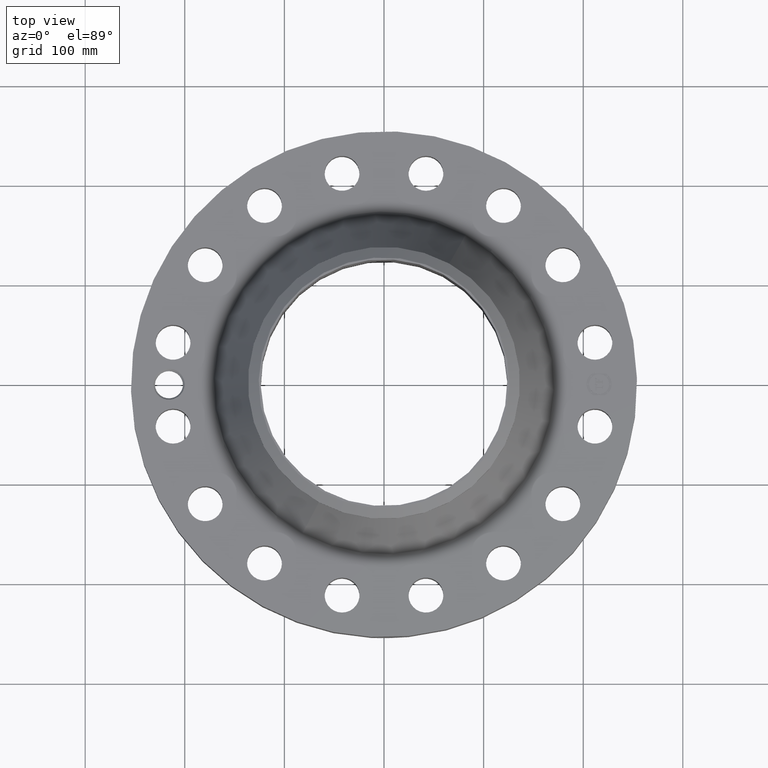
[diagram: clean part render]
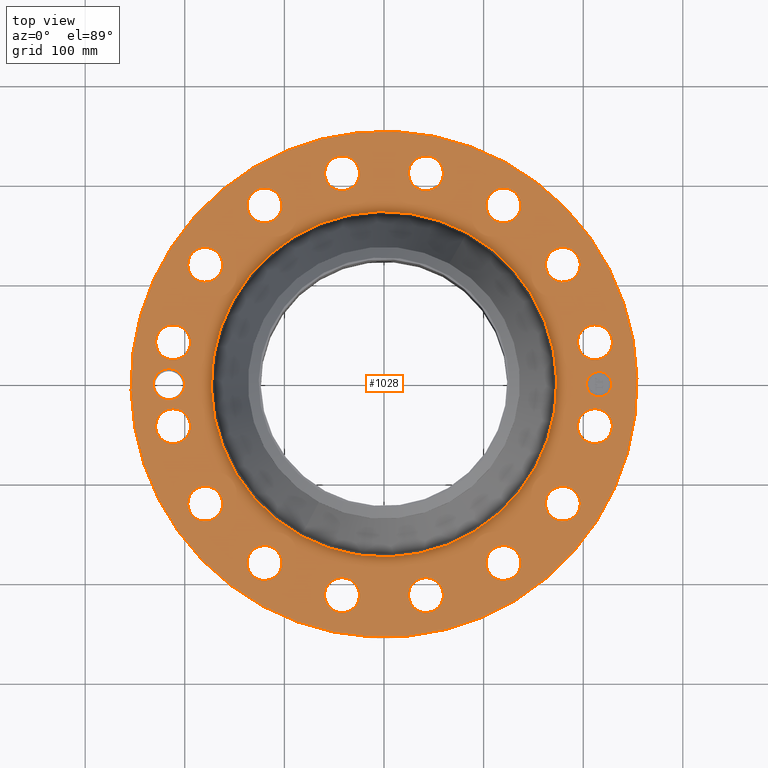
[diagram: same view with one face highlighted and labeled with its STEP entity id]
A machine part, top view. The second image highlights one B-rep face of the part: STEP entity #1028.
In plain terms, the highlighted planar face has unit normal (0, 0, -1).
Its self-contained STEP definition (entity closure, byte-faithful):
#58=AXIS2_PLACEMENT_3D('Circle Axis2P3D',#56,#57,$) ;
#547=AXIS2_PLACEMENT_3D('Circle Axis2P3D',#545,#546,$) ;
#647=AXIS2_PLACEMENT_3D('Plane Axis2P3D',#644,#645,#646) ;
#680=AXIS2_PLACEMENT_3D('Circle Axis2P3D',#678,#679,$) ;
#687=AXIS2_PLACEMENT_3D('Circle Axis2P3D',#685,#686,$) ;
#694=AXIS2_PLACEMENT_3D('Circle Axis2P3D',#692,#693,$) ;
#706=AXIS2_PLACEMENT_3D('Circle Axis2P3D',#704,#705,$) ;
#715=AXIS2_PLACEMENT_3D('Circle Axis2P3D',#713,#714,$) ;
#724=AXIS2_PLACEMENT_3D('Circle Axis2P3D',#722,#723,$) ;
#733=AXIS2_PLACEMENT_3D('Circle Axis2P3D',#731,#732,$) ;
#742=AXIS2_PLACEMENT_3D('Circle Axis2P3D',#740,#741,$) ;
#751=AXIS2_PLACEMENT_3D('Circle Axis2P3D',#749,#750,$) ;
#760=AXIS2_PLACEMENT_3D('Circle Axis2P3D',#758,#759,$) ;
#769=AXIS2_PLACEMENT_3D('Circle Axis2P3D',#767,#768,$) ;
#778=AXIS2_PLACEMENT_3D('Circle Axis2P3D',#776,#777,$) ;
#787=AXIS2_PLACEMENT_3D('Circle Axis2P3D',#785,#786,$) ;
#796=AXIS2_PLACEMENT_3D('Circle Axis2P3D',#794,#795,$) ;
#805=AXIS2_PLACEMENT_3D('Circle Axis2P3D',#803,#804,$) ;
#814=AXIS2_PLACEMENT_3D('Circle Axis2P3D',#812,#813,$) ;
#823=AXIS2_PLACEMENT_3D('Circle Axis2P3D',#821,#822,$) ;
#832=AXIS2_PLACEMENT_3D('Circle Axis2P3D',#830,#831,$) ;
#841=AXIS2_PLACEMENT_3D('Circle Axis2P3D',#839,#840,$) ;
#850=AXIS2_PLACEMENT_3D('Circle Axis2P3D',#848,#849,$) ;
#859=AXIS2_PLACEMENT_3D('Circle Axis2P3D',#857,#858,$) ;
#868=AXIS2_PLACEMENT_3D('Circle Axis2P3D',#866,#867,$) ;
#877=AXIS2_PLACEMENT_3D('Circle Axis2P3D',#875,#876,$) ;
#886=AXIS2_PLACEMENT_3D('Circle Axis2P3D',#884,#885,$) ;
#895=AXIS2_PLACEMENT_3D('Circle Axis2P3D',#893,#894,$) ;
#904=AXIS2_PLACEMENT_3D('Circle Axis2P3D',#902,#903,$) ;
#913=AXIS2_PLACEMENT_3D('Circle Axis2P3D',#911,#912,$) ;
#922=AXIS2_PLACEMENT_3D('Circle Axis2P3D',#920,#921,$) ;
#931=AXIS2_PLACEMENT_3D('Circle Axis2P3D',#929,#930,$) ;
#940=AXIS2_PLACEMENT_3D('Circle Axis2P3D',#938,#939,$) ;
#949=AXIS2_PLACEMENT_3D('Circle Axis2P3D',#947,#948,$) ;
#958=AXIS2_PLACEMENT_3D('Circle Axis2P3D',#956,#957,$) ;
#967=AXIS2_PLACEMENT_3D('Circle Axis2P3D',#965,#966,$) ;
#976=AXIS2_PLACEMENT_3D('Circle Axis2P3D',#974,#975,$) ;
#985=AXIS2_PLACEMENT_3D('Circle Axis2P3D',#983,#984,$) ;
#994=AXIS2_PLACEMENT_3D('Circle Axis2P3D',#992,#993,$) ;
#1003=AXIS2_PLACEMENT_3D('Circle Axis2P3D',#1001,#1002,$) ;
#1012=AXIS2_PLACEMENT_3D('Circle Axis2P3D',#1010,#1011,$) ;
#1021=AXIS2_PLACEMENT_3D('Circle Axis2P3D',#1019,#1020,$) ;
#53=CARTESIAN_POINT('Vertex',(-4.79425538606,-8.77582561894,2.75000000001)) ;
#56=CARTESIAN_POINT('Axis2P3D Location',(0.,0.,2.75000000001)) ;
#60=CARTESIAN_POINT('Vertex',(4.79425538606,8.77582561894,2.75000000001)) ;
#545=CARTESIAN_POINT('Axis2P3D Location',(0.,0.,2.75000000001)) ;
#644=CARTESIAN_POINT('Axis2P3D Location',(0.,10.,2.75000000001)) ;
#654=CARTESIAN_POINT('Control Point',(-7.87500000003,0.,2.75000000001)) ;
#655=CARTESIAN_POINT('Control Point',(-7.87705142064,0.0564511523804,2.75000000001)) ;
#656=CARTESIAN_POINT('Control Point',(-7.88548072354,0.112561587075,2.75000000001)) ;
#657=CARTESIAN_POINT('Control Point',(-7.90023971416,0.167363576607,2.75000000001)) ;
#658=CARTESIAN_POINT('Control Point',(-7.92105018802,0.219898873504,2.75000000001)) ;
#659=CARTESIAN_POINT('Control Point',(-7.94744108709,0.269322738981,2.75000000001)) ;
#660=CARTESIAN_POINT('Vertex',(-7.87500000003,0.,2.75000000001)) ;
#662=CARTESIAN_POINT('Vertex',(-7.94744108709,0.269322738981,2.75000000001)) ;
#666=CARTESIAN_POINT('Control Point',(-7.87500000003,0.,2.75000000001)) ;
#667=CARTESIAN_POINT('Control Point',(-7.87686305338,-0.0512676475944,2.75000000001)) ;
#668=CARTESIAN_POINT('Control Point',(-7.88398649443,-0.1022542766,2.75000000001)) ;
#669=CARTESIAN_POINT('Control Point',(-7.89632550631,-0.152217041043,2.75000000001)) ;
#670=CARTESIAN_POINT('Control Point',(-7.91547875014,-0.205418825482,2.75000000001)) ;
#671=CARTESIAN_POINT('Control Point',(-7.94033948359,-0.255718392461,2.75000000001)) ;
#672=CARTESIAN_POINT('Control Point',(-7.9427163827,-0.260400863105,2.75000000001)) ;
#673=CARTESIAN_POINT('Control Point',(-7.9451425557,-0.265056495755,2.75000000001)) ;
#674=CARTESIAN_POINT('Control Point',(-7.94761760847,-0.269684600023,2.75000000001)) ;
#675=CARTESIAN_POINT('Vertex',(-7.94761760847,-0.269684600023,2.75000000001)) ;
#678=CARTESIAN_POINT('Axis2P3D Location',(-8.50000000003,1.1189649382E-015,2.75000000001)) ;
#682=CARTESIAN_POINT('Vertex',(-7.96054999924,-0.294702878581,2.75000000001)) ;
#685=CARTESIAN_POINT('Axis2P3D Location',(-8.50000000003,1.1189649382E-015,2.75000000001)) ;
#689=CARTESIAN_POINT('Vertex',(-9.03945000083,0.294702878581,2.75000000001)) ;
#692=CARTESIAN_POINT('Axis2P3D Location',(-8.50000000003,1.1189649382E-015,2.75000000001)) ;
#704=CARTESIAN_POINT('Axis2P3D Location',(8.33667488346,-1.65826773714,2.75000000001)) ;
#708=CARTESIAN_POINT('Vertex',(7.73114291575,-1.32746411551,2.75000000001)) ;
#710=CARTESIAN_POINT('Vertex',(8.94220685117,-1.98907135878,2.75000000001)) ;
#713=CARTESIAN_POINT('Axis2P3D Location',(8.33667488346,-1.65826773714,2.75000000001)) ;
#722=CARTESIAN_POINT('Axis2P3D Location',(0.,0.,2.75000000001)) ;
#726=CARTESIAN_POINT('Vertex',(-3.27273076022,-5.99069347305,2.75000000001)) ;
#728=CARTESIAN_POINT('Vertex',(3.27273076022,5.99069347305,2.75000000001)) ;
#731=CARTESIAN_POINT('Axis2P3D Location',(0.,0.,2.75000000001)) ;
#740=CARTESIAN_POINT('Axis2P3D Location',(7.0674917046,-4.72234698069,2.75000000001)) ;
#744=CARTESIAN_POINT('Vertex',(7.50033723048,-5.25969672781,2.75000000001)) ;
#746=CARTESIAN_POINT('Vertex',(6.63464617872,-4.18499723356,2.75000000001)) ;
#749=CARTESIAN_POINT('Axis2P3D Location',(7.0674917046,-4.72234698069,2.75000000001)) ;
#758=CARTESIAN_POINT('Axis2P3D Location',(4.72234698069,-7.0674917046,2.75000000001)) ;
#762=CARTESIAN_POINT('Vertex',(4.91660925717,-7.72958094929,2.75000000001)) ;
#764=CARTESIAN_POINT('Vertex',(4.5280847042,-6.40540245991,2.75000000001)) ;
#767=CARTESIAN_POINT('Axis2P3D Location',(4.72234698069,-7.0674917046,2.75000000001)) ;
#776=CARTESIAN_POINT('Axis2P3D Location',(1.65826773714,-8.33667488346,2.75000000001)) ;
#780=CARTESIAN_POINT('Vertex',(1.58437209364,-9.02270654007,2.75000000001)) ;
#782=CARTESIAN_POINT('Vertex',(1.73216338065,-7.65064322685,2.75000000001)) ;
#785=CARTESIAN_POINT('Axis2P3D Location',(1.65826773714,-8.33667488346,2.75000000001)) ;
#794=CARTESIAN_POINT('Axis2P3D Location',(-1.65826773714,-8.33667488346,2.75000000001)) ;
#798=CARTESIAN_POINT('Vertex',(-1.98907135878,-8.94220685117,2.75000000001)) ;
#800=CARTESIAN_POINT('Vertex',(-1.32746411551,-7.73114291575,2.75000000001)) ;
#803=CARTESIAN_POINT('Axis2P3D Location',(-1.65826773714,-8.33667488346,2.75000000001)) ;
#812=CARTESIAN_POINT('Axis2P3D Location',(-4.72234698069,-7.0674917046,2.75000000001)) ;
#816=CARTESIAN_POINT('Vertex',(-5.25969672781,-7.50033723048,2.75000000001)) ;
#818=CARTESIAN_POINT('Vertex',(-4.18499723356,-6.63464617872,2.75000000001)) ;
#821=CARTESIAN_POINT('Axis2P3D Location',(-4.72234698069,-7.0674917046,2.75000000001)) ;
#830=CARTESIAN_POINT('Axis2P3D Location',(-7.0674917046,-4.72234698069,2.75000000001)) ;
#834=CARTESIAN_POINT('Vertex',(-7.72958094929,-4.91660925717,2.75000000001)) ;
#836=CARTESIAN_POINT('Vertex',(-6.40540245991,-4.5280847042,2.75000000001)) ;
#839=CARTESIAN_POINT('Axis2P3D Location',(-7.0674917046,-4.72234698069,2.75000000001)) ;
#848=CARTESIAN_POINT('Axis2P3D Location',(-8.33667488346,-1.65826773714,2.75000000001)) ;
#852=CARTESIAN_POINT('Vertex',(-9.02270654007,-1.58437209364,2.75000000001)) ;
#854=CARTESIAN_POINT('Vertex',(-7.65064322685,-1.73216338065,2.75000000001)) ;
#857=CARTESIAN_POINT('Axis2P3D Location',(-8.33667488346,-1.65826773714,2.75000000001)) ;
#866=CARTESIAN_POINT('Axis2P3D Location',(-8.33667488346,1.65826773714,2.75000000001)) ;
#870=CARTESIAN_POINT('Vertex',(-8.94220685117,1.98907135878,2.75000000001)) ;
#872=CARTESIAN_POINT('Vertex',(-7.73114291575,1.32746411551,2.75000000001)) ;
#875=CARTESIAN_POINT('Axis2P3D Location',(-8.33667488346,1.65826773714,2.75000000001)) ;
#884=CARTESIAN_POINT('Axis2P3D Location',(-7.0674917046,4.72234698069,2.75000000001)) ;
#888=CARTESIAN_POINT('Vertex',(-7.50033723048,5.25969672781,2.75000000001)) ;
#890=CARTESIAN_POINT('Vertex',(-6.63464617872,4.18499723356,2.75000000001)) ;
#893=CARTESIAN_POINT('Axis2P3D Location',(-7.0674917046,4.72234698069,2.75000000001)) ;
#902=CARTESIAN_POINT('Axis2P3D Location',(-4.72234698069,7.0674917046,2.75000000001)) ;
#906=CARTESIAN_POINT('Vertex',(-4.91660925717,7.72958094929,2.75000000001)) ;
#908=CARTESIAN_POINT('Vertex',(-4.5280847042,6.40540245991,2.75000000001)) ;
#911=CARTESIAN_POINT('Axis2P3D Location',(-4.72234698069,7.0674917046,2.75000000001)) ;
#920=CARTESIAN_POINT('Axis2P3D Location',(-1.65826773714,8.33667488346,2.75000000001)) ;
#924=CARTESIAN_POINT('Vertex',(-1.58437209364,9.02270654007,2.75000000001)) ;
#926=CARTESIAN_POINT('Vertex',(-1.73216338065,7.65064322685,2.75000000001)) ;
#929=CARTESIAN_POINT('Axis2P3D Location',(-1.65826773714,8.33667488346,2.75000000001)) ;
#938=CARTESIAN_POINT('Axis2P3D Location',(1.65826773714,8.33667488346,2.75000000001)) ;
#942=CARTESIAN_POINT('Vertex',(1.98907135878,8.94220685117,2.75000000001)) ;
#944=CARTESIAN_POINT('Vertex',(1.32746411551,7.73114291575,2.75000000001)) ;
#947=CARTESIAN_POINT('Axis2P3D Location',(1.65826773714,8.33667488346,2.75000000001)) ;
#956=CARTESIAN_POINT('Axis2P3D Location',(4.72234698069,7.0674917046,2.75000000001)) ;
#960=CARTESIAN_POINT('Vertex',(5.25969672781,7.50033723048,2.75000000001)) ;
#962=CARTESIAN_POINT('Vertex',(4.18499723356,6.63464617872,2.75000000001)) ;
#965=CARTESIAN_POINT('Axis2P3D Location',(4.72234698069,7.0674917046,2.75000000001)) ;
#974=CARTESIAN_POINT('Axis2P3D Location',(7.0674917046,4.72234698069,2.75000000001)) ;
#978=CARTESIAN_POINT('Vertex',(7.72958094929,4.91660925717,2.75000000001)) ;
#980=CARTESIAN_POINT('Vertex',(6.40540245991,4.5280847042,2.75000000001)) ;
#983=CARTESIAN_POINT('Axis2P3D Location',(7.0674917046,4.72234698069,2.75000000001)) ;
#992=CARTESIAN_POINT('Axis2P3D Location',(8.33667488346,1.65826773714,2.75000000001)) ;
#996=CARTESIAN_POINT('Vertex',(9.02270654007,1.58437209364,2.75000000001)) ;
#998=CARTESIAN_POINT('Vertex',(7.65064322685,1.73216338065,2.75000000001)) ;
#1001=CARTESIAN_POINT('Axis2P3D Location',(8.33667488346,1.65826773714,2.75000000001)) ;
#1010=CARTESIAN_POINT('Axis2P3D Location',(8.50000000003,0.,2.75000000001)) ;
#1014=CARTESIAN_POINT('Vertex',(8.50000000003,0.499999995002,2.75000000001)) ;
#1016=CARTESIAN_POINT('Vertex',(8.50000000003,-0.499999995002,2.75000000001)) ;
#1019=CARTESIAN_POINT('Axis2P3D Location',(8.50000000003,0.,2.75000000001)) ;
#57=DIRECTION('Axis2P3D Direction',(0.,0.,-0.0393700787402)) ;
#546=DIRECTION('Axis2P3D Direction',(0.,0.,-0.0393700787402)) ;
#645=DIRECTION('Axis2P3D Direction',(0.,0.,-0.0393700787402)) ;
#646=DIRECTION('Axis2P3D XDirection',(0.0393700787402,0.,0.)) ;
#679=DIRECTION('Axis2P3D Direction',(0.,0.,-0.0393700787402)) ;
#686=DIRECTION('Axis2P3D Direction',(0.,0.,-0.0393700787402)) ;
#693=DIRECTION('Axis2P3D Direction',(0.,0.,-0.0393700787402)) ;
#705=DIRECTION('Axis2P3D Direction',(0.,0.,-0.0393700787402)) ;
#714=DIRECTION('Axis2P3D Direction',(0.,0.,-0.0393700787402)) ;
#723=DIRECTION('Axis2P3D Direction',(0.,0.,-0.0393700787402)) ;
#732=DIRECTION('Axis2P3D Direction',(0.,0.,-0.0393700787402)) ;
#741=DIRECTION('Axis2P3D Direction',(0.,0.,-0.0393700787402)) ;
#750=DIRECTION('Axis2P3D Direction',(0.,0.,-0.0393700787402)) ;
#759=DIRECTION('Axis2P3D Direction',(0.,0.,-0.0393700787402)) ;
#768=DIRECTION('Axis2P3D Direction',(0.,0.,-0.0393700787402)) ;
#777=DIRECTION('Axis2P3D Direction',(0.,0.,-0.0393700787402)) ;
#786=DIRECTION('Axis2P3D Direction',(0.,0.,-0.0393700787402)) ;
#795=DIRECTION('Axis2P3D Direction',(0.,0.,-0.0393700787402)) ;
#804=DIRECTION('Axis2P3D Direction',(0.,0.,-0.0393700787402)) ;
#813=DIRECTION('Axis2P3D Direction',(0.,0.,-0.0393700787402)) ;
#822=DIRECTION('Axis2P3D Direction',(0.,0.,-0.0393700787402)) ;
#831=DIRECTION('Axis2P3D Direction',(0.,0.,-0.0393700787402)) ;
#840=DIRECTION('Axis2P3D Direction',(0.,0.,-0.0393700787402)) ;
#849=DIRECTION('Axis2P3D Direction',(0.,0.,-0.0393700787402)) ;
#858=DIRECTION('Axis2P3D Direction',(0.,0.,-0.0393700787402)) ;
#867=DIRECTION('Axis2P3D Direction',(0.,0.,-0.0393700787402)) ;
#876=DIRECTION('Axis2P3D Direction',(0.,0.,-0.0393700787402)) ;
#885=DIRECTION('Axis2P3D Direction',(0.,0.,-0.0393700787402)) ;
#894=DIRECTION('Axis2P3D Direction',(0.,0.,-0.0393700787402)) ;
#903=DIRECTION('Axis2P3D Direction',(0.,0.,-0.0393700787402)) ;
#912=DIRECTION('Axis2P3D Direction',(0.,0.,-0.0393700787402)) ;
#921=DIRECTION('Axis2P3D Direction',(0.,0.,-0.0393700787402)) ;
#930=DIRECTION('Axis2P3D Direction',(0.,0.,-0.0393700787402)) ;
#939=DIRECTION('Axis2P3D Direction',(0.,0.,-0.0393700787402)) ;
#948=DIRECTION('Axis2P3D Direction',(0.,0.,-0.0393700787402)) ;
#957=DIRECTION('Axis2P3D Direction',(0.,0.,-0.0393700787402)) ;
#966=DIRECTION('Axis2P3D Direction',(0.,0.,-0.0393700787402)) ;
#975=DIRECTION('Axis2P3D Direction',(0.,0.,-0.0393700787402)) ;
#984=DIRECTION('Axis2P3D Direction',(0.,0.,-0.0393700787402)) ;
#993=DIRECTION('Axis2P3D Direction',(0.,0.,-0.0393700787402)) ;
#1002=DIRECTION('Axis2P3D Direction',(0.,0.,-0.0393700787402)) ;
#1011=DIRECTION('Axis2P3D Direction',(0.,0.,-0.0393700787402)) ;
#1020=DIRECTION('Axis2P3D Direction',(0.,0.,-0.0393700787402)) ;
#650=ORIENTED_EDGE('',*,*,#549,.F.) ;
#651=ORIENTED_EDGE('',*,*,#62,.F.) ;
#698=ORIENTED_EDGE('',*,*,#664,.F.) ;
#699=ORIENTED_EDGE('',*,*,#677,.T.) ;
#700=ORIENTED_EDGE('',*,*,#684,.T.) ;
#701=ORIENTED_EDGE('',*,*,#691,.T.) ;
#702=ORIENTED_EDGE('',*,*,#696,.T.) ;
#719=ORIENTED_EDGE('',*,*,#712,.T.) ;
#720=ORIENTED_EDGE('',*,*,#717,.T.) ;
#737=ORIENTED_EDGE('',*,*,#730,.T.) ;
#738=ORIENTED_EDGE('',*,*,#735,.T.) ;
#755=ORIENTED_EDGE('',*,*,#748,.T.) ;
#756=ORIENTED_EDGE('',*,*,#753,.T.) ;
#773=ORIENTED_EDGE('',*,*,#766,.T.) ;
#774=ORIENTED_EDGE('',*,*,#771,.T.) ;
#791=ORIENTED_EDGE('',*,*,#784,.T.) ;
#792=ORIENTED_EDGE('',*,*,#789,.T.) ;
#809=ORIENTED_EDGE('',*,*,#802,.T.) ;
#810=ORIENTED_EDGE('',*,*,#807,.T.) ;
#827=ORIENTED_EDGE('',*,*,#820,.T.) ;
#828=ORIENTED_EDGE('',*,*,#825,.T.) ;
#845=ORIENTED_EDGE('',*,*,#838,.T.) ;
#846=ORIENTED_EDGE('',*,*,#843,.T.) ;
#863=ORIENTED_EDGE('',*,*,#856,.T.) ;
#864=ORIENTED_EDGE('',*,*,#861,.T.) ;
#881=ORIENTED_EDGE('',*,*,#874,.T.) ;
#882=ORIENTED_EDGE('',*,*,#879,.T.) ;
#899=ORIENTED_EDGE('',*,*,#892,.T.) ;
#900=ORIENTED_EDGE('',*,*,#897,.T.) ;
#917=ORIENTED_EDGE('',*,*,#910,.T.) ;
#918=ORIENTED_EDGE('',*,*,#915,.T.) ;
#935=ORIENTED_EDGE('',*,*,#928,.T.) ;
#936=ORIENTED_EDGE('',*,*,#933,.T.) ;
#953=ORIENTED_EDGE('',*,*,#946,.T.) ;
#954=ORIENTED_EDGE('',*,*,#951,.T.) ;
#971=ORIENTED_EDGE('',*,*,#964,.T.) ;
#972=ORIENTED_EDGE('',*,*,#969,.T.) ;
#989=ORIENTED_EDGE('',*,*,#982,.T.) ;
#990=ORIENTED_EDGE('',*,*,#987,.T.) ;
#1007=ORIENTED_EDGE('',*,*,#1000,.T.) ;
#1008=ORIENTED_EDGE('',*,*,#1005,.T.) ;
#1025=ORIENTED_EDGE('',*,*,#1018,.T.) ;
#1026=ORIENTED_EDGE('',*,*,#1023,.T.) ;
#703=FACE_BOUND('',#697,.T.) ;
#721=FACE_BOUND('',#718,.T.) ;
#739=FACE_BOUND('',#736,.T.) ;
#757=FACE_BOUND('',#754,.T.) ;
#775=FACE_BOUND('',#772,.T.) ;
#793=FACE_BOUND('',#790,.T.) ;
#811=FACE_BOUND('',#808,.T.) ;
#829=FACE_BOUND('',#826,.T.) ;
#847=FACE_BOUND('',#844,.T.) ;
#865=FACE_BOUND('',#862,.T.) ;
#883=FACE_BOUND('',#880,.T.) ;
#901=FACE_BOUND('',#898,.T.) ;
#919=FACE_BOUND('',#916,.T.) ;
#937=FACE_BOUND('',#934,.T.) ;
#955=FACE_BOUND('',#952,.T.) ;
#973=FACE_BOUND('',#970,.T.) ;
#991=FACE_BOUND('',#988,.T.) ;
#1009=FACE_BOUND('',#1006,.T.) ;
#1027=FACE_BOUND('',#1024,.T.) ;
#1028=ADVANCED_FACE('PartBody',(#652,#703,#721,#739,#757,#775,#793,#811,#829,#847,#865,#883,#901,#919,#937,#955,#973,#991,#1009,#1027),#648,.F.) ;
#653=B_SPLINE_CURVE_WITH_KNOTS('',5,(#654,#655,#656,#657,#658,#659),.UNSPECIFIED.,.F.,.U.,(6,6),(0.,9.86970226284),.UNSPECIFIED.) ;
#665=B_SPLINE_CURVE_WITH_KNOTS('',5,(#666,#667,#668,#669,#670,#671,#672,#673,#674),.UNSPECIFIED.,.F.,.U.,(6,3,6),(0.,8.96343823175,9.88917735995),.UNSPECIFIED.) ;
#59=CIRCLE('generated circle',#58,10.) ;
#548=CIRCLE('generated circle',#547,10.) ;
#681=CIRCLE('generated circle',#680,0.614700000002) ;
#688=CIRCLE('generated circle',#687,0.614700000002) ;
#695=CIRCLE('generated circle',#694,0.614700000002) ;
#707=CIRCLE('generated circle',#706,0.690000000003) ;
#716=CIRCLE('generated circle',#715,0.690000000003) ;
#725=CIRCLE('generated circle',#724,6.826358833) ;
#734=CIRCLE('generated circle',#733,6.826358833) ;
#743=CIRCLE('generated circle',#742,0.690000000003) ;
#752=CIRCLE('generated circle',#751,0.690000000003) ;
#761=CIRCLE('generated circle',#760,0.690000000003) ;
#770=CIRCLE('generated circle',#769,0.690000000003) ;
#779=CIRCLE('generated circle',#778,0.690000000003) ;
#788=CIRCLE('generated circle',#787,0.690000000003) ;
#797=CIRCLE('generated circle',#796,0.690000000003) ;
#806=CIRCLE('generated circle',#805,0.690000000003) ;
#815=CIRCLE('generated circle',#814,0.690000000003) ;
#824=CIRCLE('generated circle',#823,0.690000000003) ;
#833=CIRCLE('generated circle',#832,0.690000000003) ;
#842=CIRCLE('generated circle',#841,0.690000000003) ;
#851=CIRCLE('generated circle',#850,0.690000000003) ;
#860=CIRCLE('generated circle',#859,0.690000000003) ;
#869=CIRCLE('generated circle',#868,0.690000000003) ;
#878=CIRCLE('generated circle',#877,0.690000000003) ;
#887=CIRCLE('generated circle',#886,0.690000000003) ;
#896=CIRCLE('generated circle',#895,0.690000000003) ;
#905=CIRCLE('generated circle',#904,0.690000000003) ;
#914=CIRCLE('generated circle',#913,0.690000000003) ;
#923=CIRCLE('generated circle',#922,0.690000000003) ;
#932=CIRCLE('generated circle',#931,0.690000000003) ;
#941=CIRCLE('generated circle',#940,0.690000000003) ;
#950=CIRCLE('generated circle',#949,0.690000000003) ;
#959=CIRCLE('generated circle',#958,0.690000000003) ;
#968=CIRCLE('generated circle',#967,0.690000000003) ;
#977=CIRCLE('generated circle',#976,0.690000000003) ;
#986=CIRCLE('generated circle',#985,0.690000000003) ;
#995=CIRCLE('generated circle',#994,0.690000000003) ;
#1004=CIRCLE('generated circle',#1003,0.690000000003) ;
#1013=CIRCLE('generated circle',#1012,0.499999995002) ;
#1022=CIRCLE('generated circle',#1021,0.499999995002) ;
#62=EDGE_CURVE('',#54,#61,#59,.T.) ;
#549=EDGE_CURVE('',#61,#54,#548,.T.) ;
#664=EDGE_CURVE('',#661,#663,#653,.T.) ;
#677=EDGE_CURVE('',#661,#676,#665,.T.) ;
#684=EDGE_CURVE('',#676,#683,#681,.T.) ;
#691=EDGE_CURVE('',#683,#690,#688,.T.) ;
#696=EDGE_CURVE('',#690,#663,#695,.T.) ;
#712=EDGE_CURVE('',#709,#711,#707,.T.) ;
#717=EDGE_CURVE('',#711,#709,#716,.T.) ;
#730=EDGE_CURVE('',#727,#729,#725,.T.) ;
#735=EDGE_CURVE('',#729,#727,#734,.T.) ;
#748=EDGE_CURVE('',#745,#747,#743,.T.) ;
#753=EDGE_CURVE('',#747,#745,#752,.T.) ;
#766=EDGE_CURVE('',#763,#765,#761,.T.) ;
#771=EDGE_CURVE('',#765,#763,#770,.T.) ;
#784=EDGE_CURVE('',#781,#783,#779,.T.) ;
#789=EDGE_CURVE('',#783,#781,#788,.T.) ;
#802=EDGE_CURVE('',#799,#801,#797,.T.) ;
#807=EDGE_CURVE('',#801,#799,#806,.T.) ;
#820=EDGE_CURVE('',#817,#819,#815,.T.) ;
#825=EDGE_CURVE('',#819,#817,#824,.T.) ;
#838=EDGE_CURVE('',#835,#837,#833,.T.) ;
#843=EDGE_CURVE('',#837,#835,#842,.T.) ;
#856=EDGE_CURVE('',#853,#855,#851,.T.) ;
#861=EDGE_CURVE('',#855,#853,#860,.T.) ;
#874=EDGE_CURVE('',#871,#873,#869,.T.) ;
#879=EDGE_CURVE('',#873,#871,#878,.T.) ;
#892=EDGE_CURVE('',#889,#891,#887,.T.) ;
#897=EDGE_CURVE('',#891,#889,#896,.T.) ;
#910=EDGE_CURVE('',#907,#909,#905,.T.) ;
#915=EDGE_CURVE('',#909,#907,#914,.T.) ;
#928=EDGE_CURVE('',#925,#927,#923,.T.) ;
#933=EDGE_CURVE('',#927,#925,#932,.T.) ;
#946=EDGE_CURVE('',#943,#945,#941,.T.) ;
#951=EDGE_CURVE('',#945,#943,#950,.T.) ;
#964=EDGE_CURVE('',#961,#963,#959,.T.) ;
#969=EDGE_CURVE('',#963,#961,#968,.T.) ;
#982=EDGE_CURVE('',#979,#981,#977,.T.) ;
#987=EDGE_CURVE('',#981,#979,#986,.T.) ;
#1000=EDGE_CURVE('',#997,#999,#995,.T.) ;
#1005=EDGE_CURVE('',#999,#997,#1004,.T.) ;
#1018=EDGE_CURVE('',#1015,#1017,#1013,.T.) ;
#1023=EDGE_CURVE('',#1017,#1015,#1022,.T.) ;
#649=EDGE_LOOP('',(#650,#651)) ;
#697=EDGE_LOOP('',(#698,#699,#700,#701,#702)) ;
#718=EDGE_LOOP('',(#719,#720)) ;
#736=EDGE_LOOP('',(#737,#738)) ;
#754=EDGE_LOOP('',(#755,#756)) ;
#772=EDGE_LOOP('',(#773,#774)) ;
#790=EDGE_LOOP('',(#791,#792)) ;
#808=EDGE_LOOP('',(#809,#810)) ;
#826=EDGE_LOOP('',(#827,#828)) ;
#844=EDGE_LOOP('',(#845,#846)) ;
#862=EDGE_LOOP('',(#863,#864)) ;
#880=EDGE_LOOP('',(#881,#882)) ;
#898=EDGE_LOOP('',(#899,#900)) ;
#916=EDGE_LOOP('',(#917,#918)) ;
#934=EDGE_LOOP('',(#935,#936)) ;
#952=EDGE_LOOP('',(#953,#954)) ;
#970=EDGE_LOOP('',(#971,#972)) ;
#988=EDGE_LOOP('',(#989,#990)) ;
#1006=EDGE_LOOP('',(#1007,#1008)) ;
#1024=EDGE_LOOP('',(#1025,#1026)) ;
#652=FACE_OUTER_BOUND('',#649,.T.) ;
#648=PLANE('',#647) ;
#54=VERTEX_POINT('',#53) ;
#61=VERTEX_POINT('',#60) ;
#661=VERTEX_POINT('',#660) ;
#663=VERTEX_POINT('',#662) ;
#676=VERTEX_POINT('',#675) ;
#683=VERTEX_POINT('',#682) ;
#690=VERTEX_POINT('',#689) ;
#709=VERTEX_POINT('',#708) ;
#711=VERTEX_POINT('',#710) ;
#727=VERTEX_POINT('',#726) ;
#729=VERTEX_POINT('',#728) ;
#745=VERTEX_POINT('',#744) ;
#747=VERTEX_POINT('',#746) ;
#763=VERTEX_POINT('',#762) ;
#765=VERTEX_POINT('',#764) ;
#781=VERTEX_POINT('',#780) ;
#783=VERTEX_POINT('',#782) ;
#799=VERTEX_POINT('',#798) ;
#801=VERTEX_POINT('',#800) ;
#817=VERTEX_POINT('',#816) ;
#819=VERTEX_POINT('',#818) ;
#835=VERTEX_POINT('',#834) ;
#837=VERTEX_POINT('',#836) ;
#853=VERTEX_POINT('',#852) ;
#855=VERTEX_POINT('',#854) ;
#871=VERTEX_POINT('',#870) ;
#873=VERTEX_POINT('',#872) ;
#889=VERTEX_POINT('',#888) ;
#891=VERTEX_POINT('',#890) ;
#907=VERTEX_POINT('',#906) ;
#909=VERTEX_POINT('',#908) ;
#925=VERTEX_POINT('',#924) ;
#927=VERTEX_POINT('',#926) ;
#943=VERTEX_POINT('',#942) ;
#945=VERTEX_POINT('',#944) ;
#961=VERTEX_POINT('',#960) ;
#963=VERTEX_POINT('',#962) ;
#979=VERTEX_POINT('',#978) ;
#981=VERTEX_POINT('',#980) ;
#997=VERTEX_POINT('',#996) ;
#999=VERTEX_POINT('',#998) ;
#1015=VERTEX_POINT('',#1014) ;
#1017=VERTEX_POINT('',#1016) ;